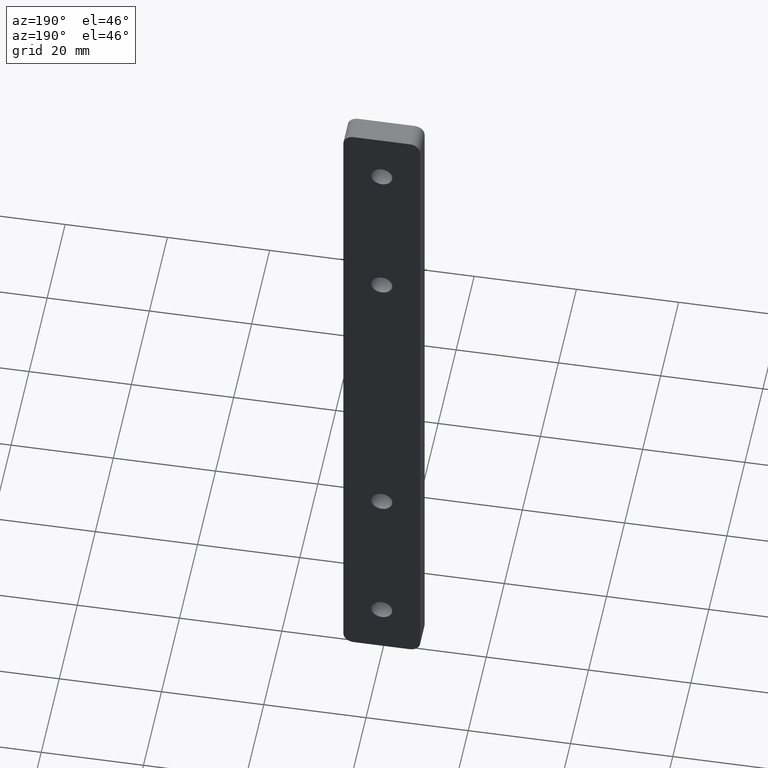
[diagram: clean part render]
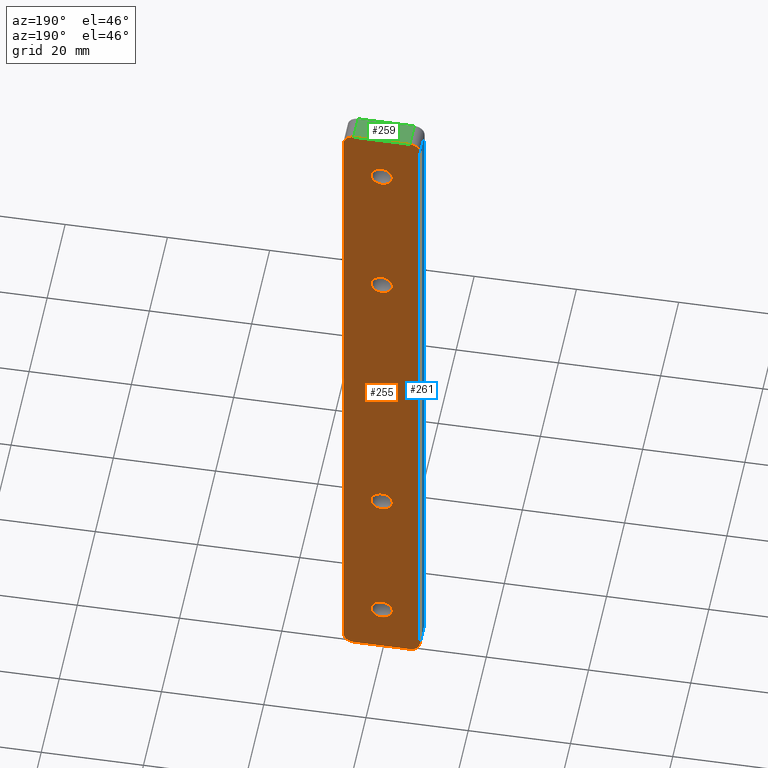
[diagram: same view with three faces highlighted in distinct colors, each labeled with its STEP entity id]
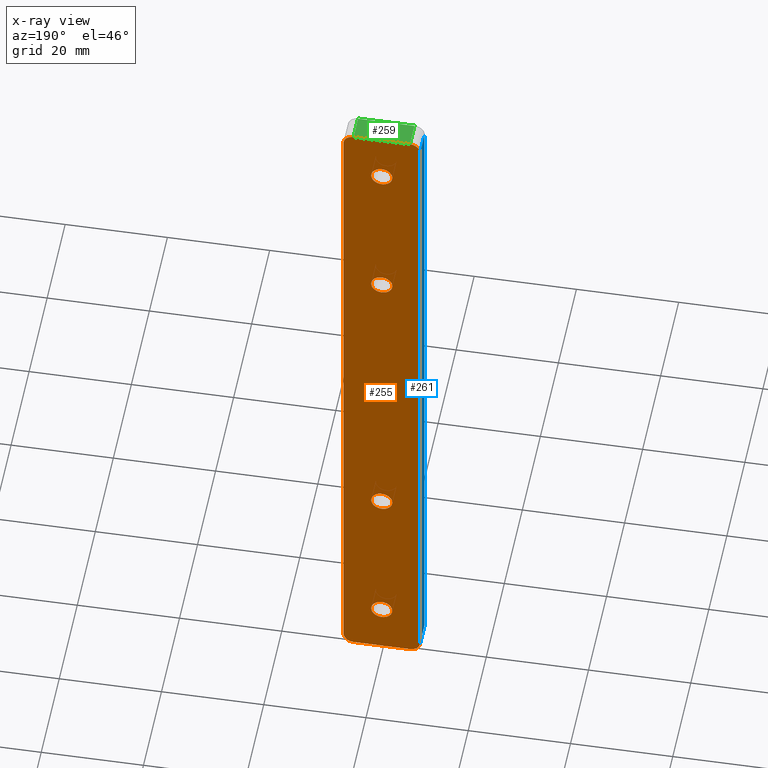
[diagram: x-ray of the same camera — body ghosted, the three highlighted faces saturated]
A machine part, auxiliary view with three faces highlighted in distinct colors.
The next image is the same camera in x-ray (body ghosted, the three faces saturated) — at least one of them is partly hidden behind the body in this view.
Their STEP definitions:

[orange] entity #255 — the highlighted planar face has unit normal (0, 1, 0).
#16=PLANE('',#281);
#23=LINE('',#405,#39);
#26=LINE('',#411,#42);
#27=LINE('',#415,#43);
#28=LINE('',#419,#44);
#39=VECTOR('',#331,11.);
#42=VECTOR('',#336,136.);
#43=VECTOR('',#339,11.);
#44=VECTOR('',#342,136.);
#57=FACE_BOUND('',#90,.T.);
#58=FACE_BOUND('',#91,.T.);
#59=FACE_BOUND('',#92,.T.);
#60=FACE_BOUND('',#93,.T.);
#71=FACE_OUTER_BOUND('',#89,.T.);
#89=EDGE_LOOP('',(#193,#194,#195,#196,#197,#198,#199,#200));
#90=EDGE_LOOP('',(#201));
#91=EDGE_LOOP('',(#202));
#92=EDGE_LOOP('',(#203));
#93=EDGE_LOOP('',(#204));
#106=CIRCLE('',#267,2.067);
#108=CIRCLE('',#270,2.067);
#110=CIRCLE('',#273,2.067);
#112=CIRCLE('',#276,2.067);
#113=CIRCLE('',#278,2.);
#115=CIRCLE('',#282,2.);
#116=CIRCLE('',#283,2.);
#117=CIRCLE('',#284,2.);
#122=VERTEX_POINT('',#377);
#124=VERTEX_POINT('',#382);
#126=VERTEX_POINT('',#387);
#128=VERTEX_POINT('',#392);
#129=VERTEX_POINT('',#395);
#130=VERTEX_POINT('',#396);
#133=VERTEX_POINT('',#404);
#135=VERTEX_POINT('',#410);
#136=VERTEX_POINT('',#412);
#137=VERTEX_POINT('',#414);
#138=VERTEX_POINT('',#416);
#139=VERTEX_POINT('',#418);
#146=EDGE_CURVE('',#122,#122,#106,.T.);
#148=EDGE_CURVE('',#124,#124,#108,.T.);
#150=EDGE_CURVE('',#126,#126,#110,.T.);
#152=EDGE_CURVE('',#128,#128,#112,.T.);
#153=EDGE_CURVE('',#129,#130,#113,.T.);
#157=EDGE_CURVE('',#130,#133,#23,.T.);
#160=EDGE_CURVE('',#135,#129,#26,.T.);
#161=EDGE_CURVE('',#136,#135,#115,.T.);
#162=EDGE_CURVE('',#137,#136,#27,.T.);
#163=EDGE_CURVE('',#138,#137,#116,.T.);
#164=EDGE_CURVE('',#138,#139,#28,.T.);
#165=EDGE_CURVE('',#133,#139,#117,.T.);
#193=ORIENTED_EDGE('',*,*,#153,.F.);
#194=ORIENTED_EDGE('',*,*,#160,.F.);
#195=ORIENTED_EDGE('',*,*,#161,.F.);
#196=ORIENTED_EDGE('',*,*,#162,.F.);
#197=ORIENTED_EDGE('',*,*,#163,.F.);
#198=ORIENTED_EDGE('',*,*,#164,.T.);
#199=ORIENTED_EDGE('',*,*,#165,.F.);
#200=ORIENTED_EDGE('',*,*,#157,.F.);
#201=ORIENTED_EDGE('',*,*,#146,.T.);
#202=ORIENTED_EDGE('',*,*,#148,.T.);
#203=ORIENTED_EDGE('',*,*,#150,.T.);
#204=ORIENTED_EDGE('',*,*,#152,.T.);
#255=ADVANCED_FACE('',(#71,#57,#58,#59,#60),#16,.T.);
#267=AXIS2_PLACEMENT_3D('',#378,#301,#302);
#270=AXIS2_PLACEMENT_3D('',#383,#307,#308);
#273=AXIS2_PLACEMENT_3D('',#388,#313,#314);
#276=AXIS2_PLACEMENT_3D('',#393,#319,#320);
#278=AXIS2_PLACEMENT_3D('',#397,#323,#324);
#281=AXIS2_PLACEMENT_3D('',#409,#334,#335);
#282=AXIS2_PLACEMENT_3D('',#413,#337,#338);
#283=AXIS2_PLACEMENT_3D('',#417,#340,#341);
#284=AXIS2_PLACEMENT_3D('',#420,#343,#344);
#301=DIRECTION('center_axis',(0.,-1.,0.));
#302=DIRECTION('ref_axis',(1.,0.,0.));
#307=DIRECTION('center_axis',(0.,-1.,0.));
#308=DIRECTION('ref_axis',(1.,0.,0.));
#313=DIRECTION('center_axis',(0.,-1.,0.));
#314=DIRECTION('ref_axis',(1.,0.,0.));
#319=DIRECTION('center_axis',(0.,-1.,0.));
#320=DIRECTION('ref_axis',(1.,0.,0.));
#323=DIRECTION('center_axis',(0.,-1.,0.));
#324=DIRECTION('ref_axis',(-0.707106781186546,0.,-0.707106781186549));
#331=DIRECTION('',(1.,0.,0.));
#334=DIRECTION('center_axis',(0.,1.,0.));
#335=DIRECTION('ref_axis',(-1.,0.,0.));
#336=DIRECTION('',(0.,0.,-1.));
#337=DIRECTION('center_axis',(0.,-1.,0.));
#338=DIRECTION('ref_axis',(-0.707106781186546,0.,0.707106781186549));
#339=DIRECTION('',(-1.,0.,0.));
#340=DIRECTION('center_axis',(0.,-1.,0.));
#341=DIRECTION('ref_axis',(0.707106781186546,0.,0.707106781186549));
#342=DIRECTION('',(0.,0.,-1.));
#343=DIRECTION('center_axis',(0.,-1.,0.));
#344=DIRECTION('ref_axis',(0.707106781186546,0.,-0.707106781186549));
#377=CARTESIAN_POINT('',(2.067,2.5,-30.));
#378=CARTESIAN_POINT('Origin',(0.,2.5,-30.));
#382=CARTESIAN_POINT('',(2.067,2.5,60.));
#383=CARTESIAN_POINT('Origin',(0.,2.5,60.));
#387=CARTESIAN_POINT('',(2.067,2.5,30.));
#388=CARTESIAN_POINT('Origin',(0.,2.5,30.));
#392=CARTESIAN_POINT('',(2.067,2.5,-60.));
#393=CARTESIAN_POINT('Origin',(0.,2.5,-60.));
#395=CARTESIAN_POINT('',(-7.5,2.5,-68.));
#396=CARTESIAN_POINT('',(-5.5,2.5,-70.));
#397=CARTESIAN_POINT('Origin',(-5.5,2.5,-68.));
#404=CARTESIAN_POINT('',(5.5,2.5,-70.));
#405=CARTESIAN_POINT('',(-7.5,2.5,-70.));
#409=CARTESIAN_POINT('Origin',(7.5,2.5,0.));
#410=CARTESIAN_POINT('',(-7.5,2.5,68.));
#411=CARTESIAN_POINT('',(-7.5,2.5,0.));
#412=CARTESIAN_POINT('',(-5.5,2.5,70.));
#413=CARTESIAN_POINT('Origin',(-5.5,2.5,68.));
#414=CARTESIAN_POINT('',(5.5,2.5,70.));
#415=CARTESIAN_POINT('',(-7.5,2.5,70.));
#416=CARTESIAN_POINT('',(7.5,2.5,68.));
#417=CARTESIAN_POINT('Origin',(5.5,2.5,68.));
#418=CARTESIAN_POINT('',(7.5,2.5,-68.));
#419=CARTESIAN_POINT('',(7.5,2.5,0.));
#420=CARTESIAN_POINT('Origin',(5.5,2.5,-68.));

[blue] entity #261 — the highlighted planar face has unit normal (-1, 0, 0).
#19=PLANE('',#293);
#22=LINE('',#402,#38);
#26=LINE('',#411,#42);
#33=LINE('',#434,#49);
#36=LINE('',#442,#52);
#38=VECTOR('',#328,5.);
#42=VECTOR('',#336,136.);
#49=VECTOR('',#359,5.);
#52=VECTOR('',#370,136.);
#77=FACE_OUTER_BOUND('',#99,.T.);
#99=EDGE_LOOP('',(#225,#226,#227,#228));
#129=VERTEX_POINT('',#395);
#132=VERTEX_POINT('',#400);
#135=VERTEX_POINT('',#410);
#142=VERTEX_POINT('',#430);
#156=EDGE_CURVE('',#132,#129,#22,.T.);
#160=EDGE_CURVE('',#135,#129,#26,.T.);
#172=EDGE_CURVE('',#135,#142,#33,.T.);
#176=EDGE_CURVE('',#142,#132,#36,.T.);
#225=ORIENTED_EDGE('',*,*,#156,.F.);
#226=ORIENTED_EDGE('',*,*,#176,.F.);
#227=ORIENTED_EDGE('',*,*,#172,.F.);
#228=ORIENTED_EDGE('',*,*,#160,.T.);
#261=ADVANCED_FACE('',(#77),#19,.T.);
#293=AXIS2_PLACEMENT_3D('',#441,#368,#369);
#328=DIRECTION('',(0.,1.,0.));
#336=DIRECTION('',(0.,0.,-1.));
#359=DIRECTION('',(0.,-1.,0.));
#368=DIRECTION('center_axis',(-1.,0.,0.));
#369=DIRECTION('ref_axis',(0.,-1.,0.));
#370=DIRECTION('',(0.,0.,-1.));
#395=CARTESIAN_POINT('',(-7.5,2.5,-68.));
#400=CARTESIAN_POINT('',(-7.5,-2.5,-68.));
#402=CARTESIAN_POINT('',(-7.5,1.25,-68.));
#410=CARTESIAN_POINT('',(-7.5,2.5,68.));
#411=CARTESIAN_POINT('',(-7.5,2.5,0.));
#430=CARTESIAN_POINT('',(-7.5,-2.5,68.));
#434=CARTESIAN_POINT('',(-7.5,1.25,68.));
#441=CARTESIAN_POINT('Origin',(-7.5,2.5,0.));
#442=CARTESIAN_POINT('',(-7.5,-2.5,0.));

[green] entity #259 — the highlighted planar face has unit normal (0, 0, 1).
#18=PLANE('',#290);
#27=LINE('',#415,#43);
#32=LINE('',#433,#48);
#34=LINE('',#437,#50);
#35=LINE('',#438,#51);
#43=VECTOR('',#339,11.);
#48=VECTOR('',#358,5.);
#50=VECTOR('',#362,11.);
#51=VECTOR('',#363,5.);
#75=FACE_OUTER_BOUND('',#97,.T.);
#97=EDGE_LOOP('',(#217,#218,#219,#220));
#136=VERTEX_POINT('',#412);
#137=VERTEX_POINT('',#414);
#143=VERTEX_POINT('',#431);
#144=VERTEX_POINT('',#436);
#162=EDGE_CURVE('',#137,#136,#27,.T.);
#171=EDGE_CURVE('',#143,#136,#32,.T.);
#173=EDGE_CURVE('',#143,#144,#34,.T.);
#174=EDGE_CURVE('',#137,#144,#35,.T.);
#217=ORIENTED_EDGE('',*,*,#171,.F.);
#218=ORIENTED_EDGE('',*,*,#173,.T.);
#219=ORIENTED_EDGE('',*,*,#174,.F.);
#220=ORIENTED_EDGE('',*,*,#162,.T.);
#259=ADVANCED_FACE('',(#75),#18,.T.);
#290=AXIS2_PLACEMENT_3D('',#435,#360,#361);
#339=DIRECTION('',(-1.,0.,0.));
#358=DIRECTION('',(0.,1.,0.));
#360=DIRECTION('center_axis',(0.,0.,1.));
#361=DIRECTION('ref_axis',(1.,0.,0.));
#362=DIRECTION('',(1.,0.,0.));
#363=DIRECTION('',(0.,-1.,0.));
#412=CARTESIAN_POINT('',(-5.5,2.5,70.));
#414=CARTESIAN_POINT('',(5.5,2.5,70.));
#415=CARTESIAN_POINT('',(-7.5,2.5,70.));
#431=CARTESIAN_POINT('',(-5.5,-2.5,70.));
#433=CARTESIAN_POINT('',(-5.5,1.25,70.));
#435=CARTESIAN_POINT('Origin',(0.,0.,70.));
#436=CARTESIAN_POINT('',(5.5,-2.5,70.));
#437=CARTESIAN_POINT('',(7.5,-2.5,70.));
#438=CARTESIAN_POINT('',(5.5,-1.25,70.));